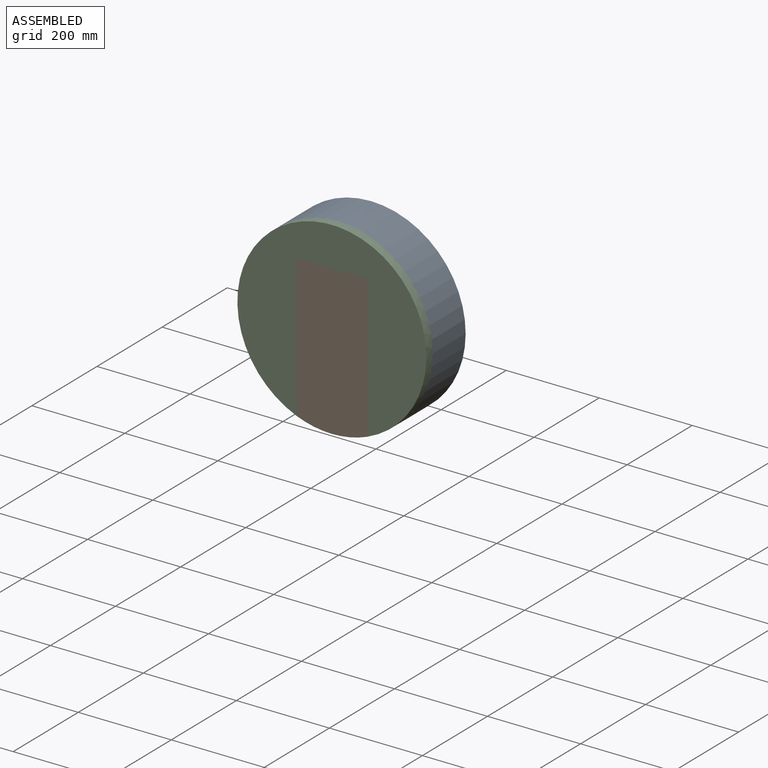
[diagram: assembled view]
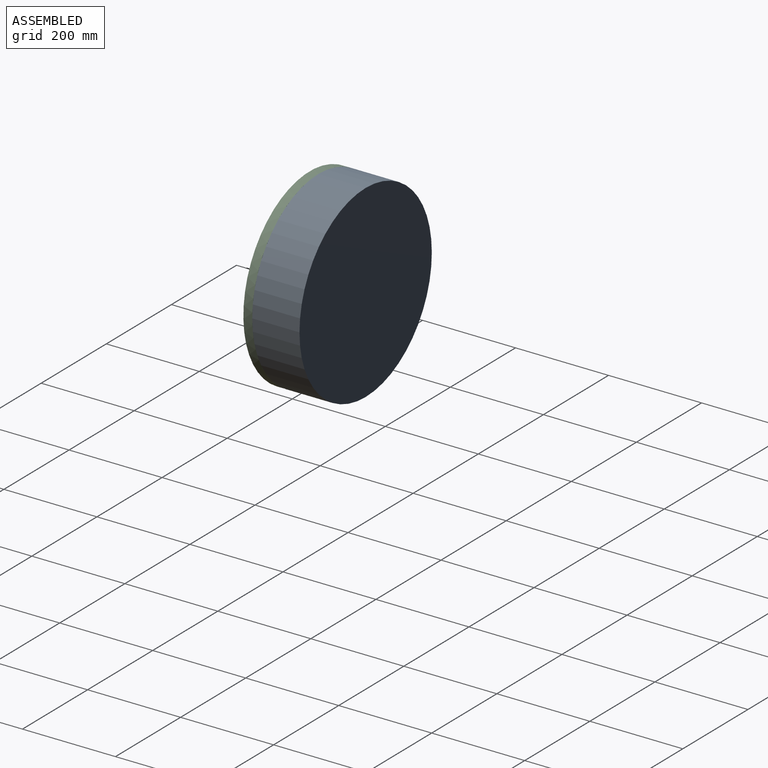
[diagram: assembled view, second angle]
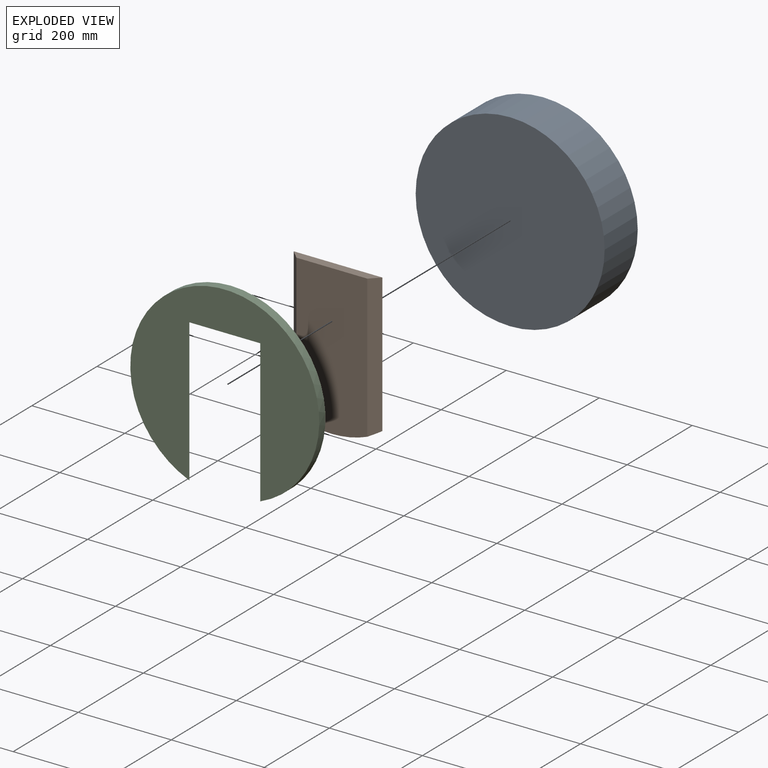
[diagram: exploded view]
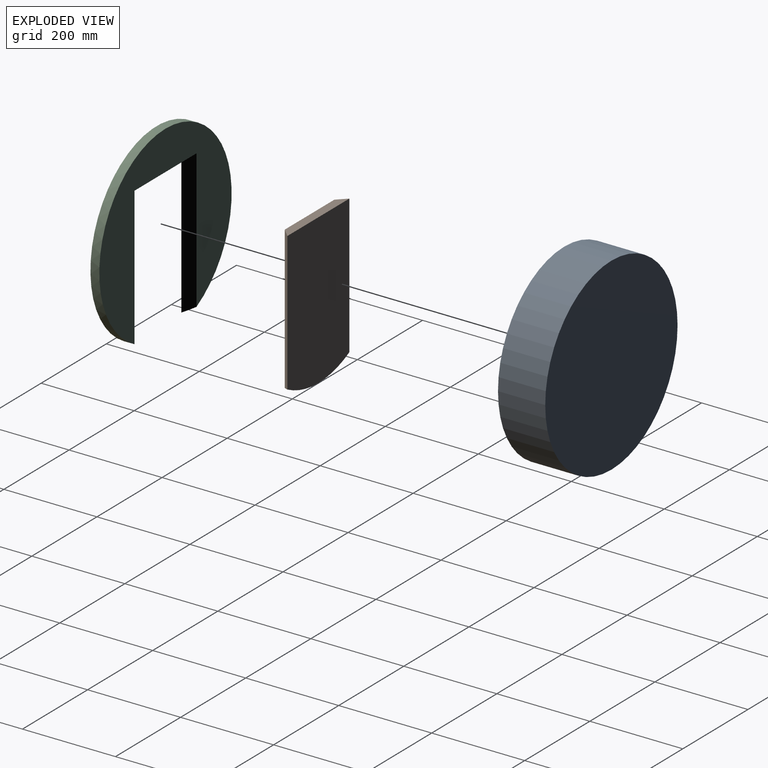
[diagram: exploded view, second angle]
ASSEMBLY  parts=3 mates=2
PART A: 3 faces, bbox 406.4x101.6x406.4 mm
  f0: cylinder r=203.2mm len=406.4mm, axis (0,1,0), area 129717.1mm2, adj f1,f2
  f1: plane 406.4x406.4mm, normal (0,-1,0), area 129717.1mm2, adj f0
  f2: plane 406.4x406.4mm, normal (0,1,0), area 129717.1mm2, adj f0
PART B: 6 faces, bbox 190.5x19.1x322.2 mm
  f0: plane 190.5x19.05mm, normal (0,0,-1), area 3266.1mm2, adj f2,f3,f4,f5
  f1: cylinder r=203.2mm len=190.5mm, axis (0,1,0), area 3373.3mm2, adj f2,f3,f4,f5
  f2: plane 322.17x152.4mm, normal (0,-1,0), area 48356.3mm2, adj f0,f1,f4,f5
  f3: plane 322.17x190.5mm, normal (0,1,0), area 59904.4mm2, adj f0,f1,f4,f5
  f4: plane 307.34x19.05mm, normal (0.71,-0.71,0), area 8165.7mm2, adj f0,f1,f2,f3
  f5: plane 307.34x19.05mm, normal (-0.71,-0.71,0), area 8165.7mm2, adj f0,f1,f2,f3
PART C: 6 faces, bbox 406.4x19.1x391.6 mm
  f0: plane 190.5x19.05mm, normal (0,0,1), area 3266.1mm2, adj f2,f3,f4,f5
  f1: cylinder r=203.2mm len=406.4mm, axis (0,1,0), area 20948.6mm2, adj f2,f3,f4,f5
  f2: plane 406.4x391.57mm, normal (0,-1,0), area 81360.8mm2, adj f0,f1,f4,f5
  f3: plane 406.4x382.69mm, normal (0,1,0), area 69812.7mm2, adj f0,f1,f4,f5
  f4: plane 307.34x19.05mm, normal (0.71,0.71,0), area 8165.7mm2, adj f0,f1,f2,f3
  f5: plane 307.34x19.05mm, normal (-0.71,0.71,0), area 8165.7mm2, adj f0,f1,f2,f3
PLACE A rot(axis=(0,-1,0),180deg) t=(722.94,73.2,136.41)mm
PLACE B rot(axis=(0,-1,0),180deg) t=(1678.15,12.88,95.81)mm
PLACE C rot(axis=(0,-1,0),180deg) t=(1678.15,12.88,95.81)mm
MATE fastened C.f1 <-> A.f0  axis (0,1,0) through (722.94,22.4,136.41)mm
MATE slider B.f0 <-> C.f0  axis (0,0,-1) through (818.19,22.4,255.38)mm
